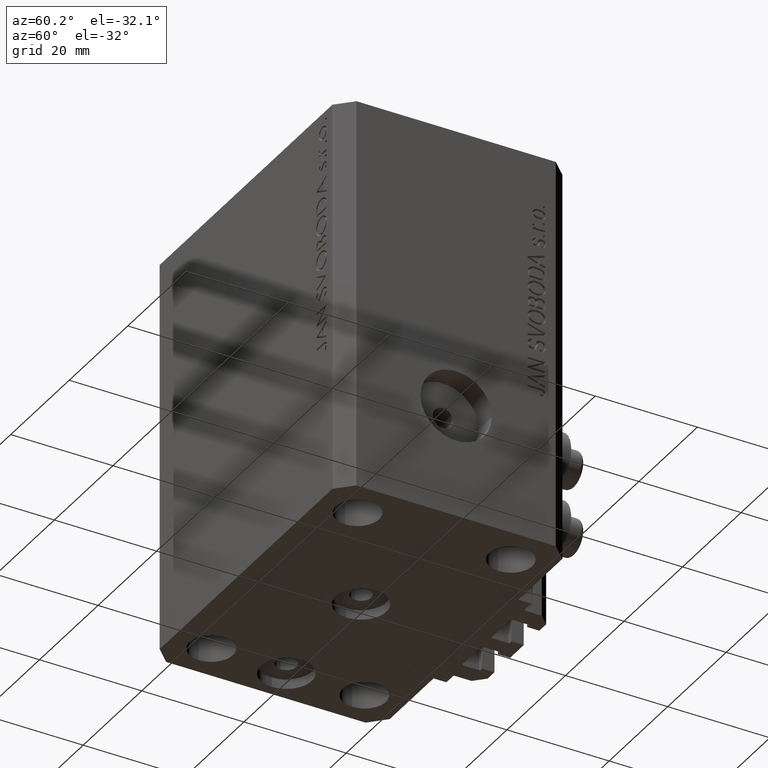
[diagram: clean part render]
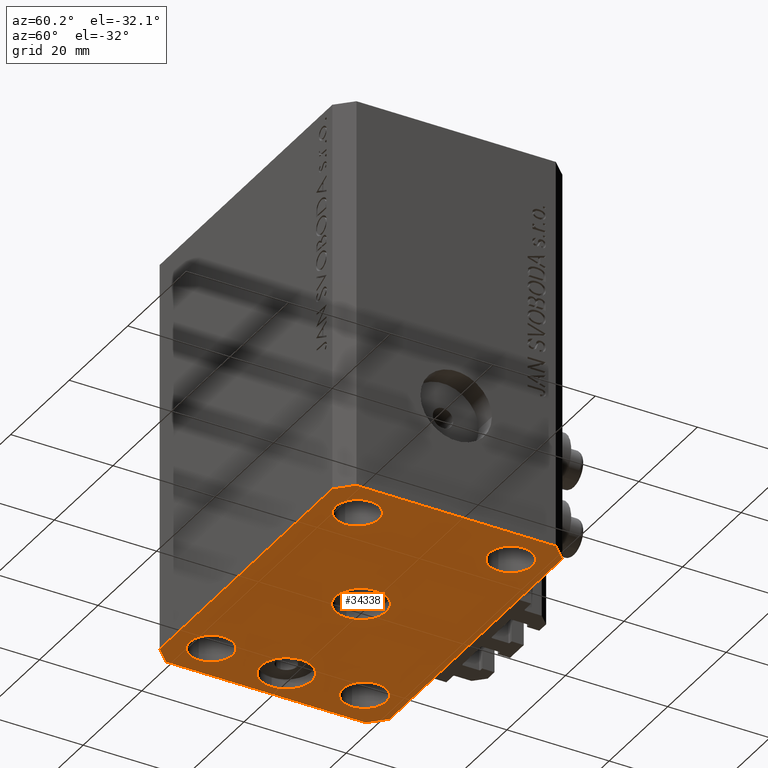
[diagram: same view with one face highlighted and labeled with its STEP entity id]
A machine part, auxiliary view. The second image highlights one B-rep face of the part: STEP entity #34338.
In plain terms, the highlighted planar face has unit normal (0, 0, 1).
Its self-contained STEP definition (entity closure, byte-faithful):
#42 = EDGE_LOOP ( 'NONE', ( #28017, #45669, #17733, #45471, #38577, #26413, #19222, #33007 ) ) ;
#112 = CARTESIAN_POINT ( 'NONE',  ( 29.49999999999650413, -22.49999999999949196, -77.00000000000000000 ) ) ;
#192 = CARTESIAN_POINT ( 'NONE',  ( 29.49999999999707967, 22.49999999999952038, -77.00000000000000000 ) ) ;
#526 = CARTESIAN_POINT ( 'NONE',  ( 29.49999999999707967, 22.49999999999952038, -77.00000000000000000 ) ) ;
#890 = VERTEX_POINT ( 'NONE', #192 ) ;
#1802 = EDGE_CURVE ( 'NONE', #18917, #890, #41282, .T. ) ;
#2027 = CARTESIAN_POINT ( 'NONE',  ( -25.50000000000000000, 0.000000000000000000, -77.00000000000000000 ) ) ;
#2393 = EDGE_CURVE ( 'NONE', #28369, #24701, #24272, .T. ) ;
#2681 = DIRECTION ( 'NONE',  ( 0.000000000000000000, 0.000000000000000000, 1.000000000000000000 ) ) ;
#2917 = FACE_OUTER_BOUND ( 'NONE', #42, .T. ) ;
#2979 = AXIS2_PLACEMENT_3D ( 'NONE', #4866, #23077, #37979 ) ;
#3163 = CIRCLE ( 'NONE', #36931, 4.250000000040370374 ) ;
#3280 = AXIS2_PLACEMENT_3D ( 'NONE', #41331, #4855, #31183 ) ;
#3887 = CARTESIAN_POINT ( 'NONE',  ( 20.75000000004271072, 14.99999999999999289, -77.00000000000000000 ) ) ;
#4546 = VERTEX_POINT ( 'NONE', #8522 ) ;
#4743 = CIRCLE ( 'NONE', #16970, 5.000000000000000000 ) ;
#4781 = VERTEX_POINT ( 'NONE', #3887 ) ;
#4855 = DIRECTION ( 'NONE',  ( -0.000000000000000000, -0.000000000000000000, -1.000000000000000000 ) ) ;
#4866 = CARTESIAN_POINT ( 'NONE',  ( -25.50000000000000000, 0.000000000000000000, -77.00000000000000000 ) ) ;
#5001 = EDGE_CURVE ( 'NONE', #37914, #17655, #17974, .T. ) ;
#5147 = VECTOR ( 'NONE', #21220, 1000.000000000000000 ) ;
#5447 = CARTESIAN_POINT ( 'NONE',  ( -30.49999999999665690, 0.000000000000000000, -77.00000000000000000 ) ) ;
#5607 = ORIENTED_EDGE ( 'NONE', *, *, #41930, .F. ) ;
#6002 = VECTOR ( 'NONE', #6464, 1000.000000000000114 ) ;
#6464 = DIRECTION ( 'NONE',  ( 0.7071067811865474617, -0.7071067811865474617, 0.000000000000000000 ) ) ;
#7131 = CIRCLE ( 'NONE', #44677, 4.249999999976314058 ) ;
#7412 = DIRECTION ( 'NONE',  ( 0.000000000000000000, 0.000000000000000000, -1.000000000000000000 ) ) ;
#7545 = CARTESIAN_POINT ( 'NONE',  ( -32.49999999999650413, -19.49999999999949907, -77.00000000000000000 ) ) ;
#7608 = EDGE_LOOP ( 'NONE', ( #21483, #22783 ) ) ;
#7829 = DIRECTION ( 'NONE',  ( 1.000000000000000000, 0.000000000000000000, 0.000000000000000000 ) ) ;
#8128 = VERTEX_POINT ( 'NONE', #30018 ) ;
#8258 = AXIS2_PLACEMENT_3D ( 'NONE', #11339, #21682, #36333 ) ;
#8388 = CARTESIAN_POINT ( 'NONE',  ( 32.49999999999702993, 19.49999999999945999, -77.00000000000000000 ) ) ;
#8522 = CARTESIAN_POINT ( 'NONE',  ( 29.49999999999650413, -22.49999999999949196, -77.00000000000000000 ) ) ;
#9451 = AXIS2_PLACEMENT_3D ( 'NONE', #29903, #11677, #26313 ) ;
#9556 = ORIENTED_EDGE ( 'NONE', *, *, #34120, .F. ) ;
#9796 = LINE ( 'NONE', #27787, #13570 ) ;
#9815 = VERTEX_POINT ( 'NONE', #5447 ) ;
#9880 = CIRCLE ( 'NONE', #2979, 4.999999999996659561 ) ;
#10286 = CARTESIAN_POINT ( 'NONE',  ( -32.49999999999650413, -19.49999999999949907, -77.00000000000000000 ) ) ;
#10474 = AXIS2_PLACEMENT_3D ( 'NONE', #38688, #2681, #17301 ) ;
#10709 = DIRECTION ( 'NONE',  ( -0.000000000000000000, -0.000000000000000000, -1.000000000000000000 ) ) ;
#11274 = DIRECTION ( 'NONE',  ( -1.000000000000000000, 0.000000000000000000, 0.000000000000000000 ) ) ;
#11339 = CARTESIAN_POINT ( 'NONE',  ( 24.99999999999999289, -15.00000000000000355, -77.00000000000000000 ) ) ;
#11514 = EDGE_LOOP ( 'NONE', ( #43559, #5607 ) ) ;
#11677 = DIRECTION ( 'NONE',  ( -0.000000000000000000, -0.000000000000000000, -1.000000000000000000 ) ) ;
#12297 = EDGE_CURVE ( 'NONE', #19050, #37914, #45488, .T. ) ;
#12428 = CARTESIAN_POINT ( 'NONE',  ( 32.49999999999702993, 19.49999999999945999, -77.00000000000000000 ) ) ;
#12856 = ORIENTED_EDGE ( 'NONE', *, *, #21767, .F. ) ;
#13296 = EDGE_CURVE ( 'NONE', #17655, #4546, #22169, .T. ) ;
#13449 = VERTEX_POINT ( 'NONE', #13974 ) ;
#13523 = EDGE_CURVE ( 'NONE', #13449, #45925, #3163, .T. ) ;
#13570 = VECTOR ( 'NONE', #31619, 1000.000000000000000 ) ;
#13607 = CARTESIAN_POINT ( 'NONE',  ( -29.25000000002137668, 14.99999999999999645, -77.00000000000000000 ) ) ;
#13974 = CARTESIAN_POINT ( 'NONE',  ( -20.74999999995962341, -15.00000000000000355, -77.00000000000000000 ) ) ;
#14024 = VECTOR ( 'NONE', #32669, 1000.000000000000000 ) ;
#14265 = VERTEX_POINT ( 'NONE', #33122 ) ;
#14282 = EDGE_CURVE ( 'NONE', #42781, #46429, #4743, .T. ) ;
#14787 = CARTESIAN_POINT ( 'NONE',  ( 24.99999999999999289, -15.00000000000000355, -77.00000000000000000 ) ) ;
#14886 = CARTESIAN_POINT ( 'NONE',  ( 0.000000000000000000, 0.000000000000000000, -77.00000000000000000 ) ) ;
#15067 = DIRECTION ( 'NONE',  ( 1.000000000000000000, 0.000000000000000000, 0.000000000000000000 ) ) ;
#15112 = ORIENTED_EDGE ( 'NONE', *, *, #14282, .F. ) ;
#15149 = DIRECTION ( 'NONE',  ( -0.000000000000000000, -0.000000000000000000, -1.000000000000000000 ) ) ;
#15323 = VERTEX_POINT ( 'NONE', #28268 ) ;
#15462 = CARTESIAN_POINT ( 'NONE',  ( -5.000000000000000000, 0.000000000000000000, -77.00000000000000000 ) ) ;
#16292 = DIRECTION ( 'NONE',  ( -0.000000000000000000, -0.000000000000000000, -1.000000000000000000 ) ) ;
#16515 = CARTESIAN_POINT ( 'NONE',  ( -25.00000000000000000, 14.99999999999999645, -77.00000000000000000 ) ) ;
#16970 = AXIS2_PLACEMENT_3D ( 'NONE', #14886, #44182, #11274 ) ;
#16997 = DIRECTION ( 'NONE',  ( 1.000000000000000000, 0.000000000000000000, 0.000000000000000000 ) ) ;
#17301 = DIRECTION ( 'NONE',  ( 1.000000000000000000, 0.000000000000000000, -0.000000000000000000 ) ) ;
#17655 = VERTEX_POINT ( 'NONE', #46711 ) ;
#17733 = ORIENTED_EDGE ( 'NONE', *, *, #17980, .F. ) ;
#17974 = LINE ( 'NONE', #10286, #6002 ) ;
#17980 = EDGE_CURVE ( 'NONE', #44664, #18917, #9796, .T. ) ;
#18090 = EDGE_LOOP ( 'NONE', ( #36452, #9556 ) ) ;
#18503 = VECTOR ( 'NONE', #18817, 1000.000000000000000 ) ;
#18817 = DIRECTION ( 'NONE',  ( 1.000000000000000000, 1.176083712526788232E-16, 0.000000000000000000 ) ) ;
#18917 = VERTEX_POINT ( 'NONE', #12428 ) ;
#19050 = VERTEX_POINT ( 'NONE', #42412 ) ;
#19137 = EDGE_CURVE ( 'NONE', #35053, #14265, #7131, .T. ) ;
#19222 = ORIENTED_EDGE ( 'NONE', *, *, #12297, .F. ) ;
#19694 = AXIS2_PLACEMENT_3D ( 'NONE', #35722, #35489, #16997 ) ;
#19746 = CARTESIAN_POINT ( 'NONE',  ( 29.24999999995729283, 14.99999999999999289, -77.00000000000000000 ) ) ;
#19778 = EDGE_CURVE ( 'NONE', #890, #15323, #21643, .T. ) ;
#19787 = DIRECTION ( 'NONE',  ( -1.000000000000000000, 0.000000000000000000, 0.000000000000000000 ) ) ;
#20255 = DIRECTION ( 'NONE',  ( 0.000000000000000000, 0.000000000000000000, -1.000000000000000000 ) ) ;
#20682 = ORIENTED_EDGE ( 'NONE', *, *, #2393, .F. ) ;
#20775 = VECTOR ( 'NONE', #31283, 1000.000000000000000 ) ;
#21211 = CARTESIAN_POINT ( 'NONE',  ( 29.24999999997631051, -15.00000000000000355, -77.00000000000000000 ) ) ;
#21220 = DIRECTION ( 'NONE',  ( 0.7071067811865483499, 0.7071067811865466846, 0.000000000000000000 ) ) ;
#21483 = ORIENTED_EDGE ( 'NONE', *, *, #13523, .F. ) ;
#21643 = LINE ( 'NONE', #526, #14024 ) ;
#21682 = DIRECTION ( 'NONE',  ( -0.000000000000000000, -0.000000000000000000, -1.000000000000000000 ) ) ;
#21729 = AXIS2_PLACEMENT_3D ( 'NONE', #16515, #16292, #37921 ) ;
#21767 = EDGE_CURVE ( 'NONE', #4781, #32617, #46961, .T. ) ;
#22169 = LINE ( 'NONE', #22406, #18503 ) ;
#22406 = CARTESIAN_POINT ( 'NONE',  ( -29.49999999999650413, -22.49999999999949907, -77.00000000000000000 ) ) ;
#22783 = ORIENTED_EDGE ( 'NONE', *, *, #34828, .F. ) ;
#22791 = ORIENTED_EDGE ( 'NONE', *, *, #25284, .F. ) ;
#22853 = FACE_BOUND ( 'NONE', #11514, .T. ) ;
#23077 = DIRECTION ( 'NONE',  ( 0.000000000000000000, 0.000000000000000000, -1.000000000000000000 ) ) ;
#23796 = FACE_BOUND ( 'NONE', #41529, .T. ) ;
#24027 = PLANE ( 'NONE',  #10474 ) ;
#24113 = ORIENTED_EDGE ( 'NONE', *, *, #24965, .F. ) ;
#24272 = CIRCLE ( 'NONE', #19694, 4.250000000021375790 ) ;
#24331 = CARTESIAN_POINT ( 'NONE',  ( -32.49999999999650413, 19.49999999999949907, -77.00000000000000000 ) ) ;
#24701 = VERTEX_POINT ( 'NONE', #28720 ) ;
#24834 = AXIS2_PLACEMENT_3D ( 'NONE', #46535, #7412, #47022 ) ;
#24965 = EDGE_CURVE ( 'NONE', #24701, #28369, #43190, .T. ) ;
#25067 = VECTOR ( 'NONE', #37922, 1000.000000000000000 ) ;
#25102 = CIRCLE ( 'NONE', #8258, 4.249999999976314058 ) ;
#25284 = EDGE_CURVE ( 'NONE', #32617, #4781, #30123, .T. ) ;
#25633 = CARTESIAN_POINT ( 'NONE',  ( -24.99999999999999289, -15.00000000000000355, -77.00000000000000000 ) ) ;
#26313 = DIRECTION ( 'NONE',  ( 1.000000000000000000, 0.000000000000000000, 0.000000000000000000 ) ) ;
#26413 = ORIENTED_EDGE ( 'NONE', *, *, #5001, .F. ) ;
#26429 = LINE ( 'NONE', #33639, #27648 ) ;
#26964 = EDGE_CURVE ( 'NONE', #46429, #42781, #42488, .T. ) ;
#27648 = VECTOR ( 'NONE', #29549, 1000.000000000000114 ) ;
#27787 = CARTESIAN_POINT ( 'NONE',  ( 32.49999999999651124, -19.49999999999949196, -77.00000000000000000 ) ) ;
#28017 = ORIENTED_EDGE ( 'NONE', *, *, #19778, .F. ) ;
#28268 = CARTESIAN_POINT ( 'NONE',  ( -29.49999999999650413, 22.49999999999949907, -77.00000000000000000 ) ) ;
#28369 = VERTEX_POINT ( 'NONE', #13607 ) ;
#28720 = CARTESIAN_POINT ( 'NONE',  ( -20.74999999997862687, 14.99999999999999645, -77.00000000000000000 ) ) ;
#29549 = DIRECTION ( 'NONE',  ( -0.7071067811865474617, -0.7071067811865474617, 0.000000000000000000 ) ) ;
#29903 = CARTESIAN_POINT ( 'NONE',  ( 25.00000000000000000, 14.99999999999999289, -77.00000000000000000 ) ) ;
#30018 = CARTESIAN_POINT ( 'NONE',  ( -20.50000000000333955, 6.123233995732674066E-16, -77.00000000000000000 ) ) ;
#30123 = CIRCLE ( 'NONE', #9451, 4.249999999957291053 ) ;
#30235 = DIRECTION ( 'NONE',  ( 1.000000000000000000, 0.000000000000000000, 0.000000000000000000 ) ) ;
#30747 = FACE_BOUND ( 'NONE', #18090, .T. ) ;
#31183 = DIRECTION ( 'NONE',  ( 1.000000000000000000, 0.000000000000000000, 0.000000000000000000 ) ) ;
#31283 = DIRECTION ( 'NONE',  ( 0.000000000000000000, -1.000000000000000000, 0.000000000000000000 ) ) ;
#31619 = DIRECTION ( 'NONE',  ( 1.334402673828349134E-14, 1.000000000000000000, 0.000000000000000000 ) ) ;
#32469 = EDGE_LOOP ( 'NONE', ( #24113, #20682 ) ) ;
#32617 = VERTEX_POINT ( 'NONE', #19746 ) ;
#32669 = DIRECTION ( 'NONE',  ( -1.000000000000000000, -3.528251137580330676E-16, 0.000000000000000000 ) ) ;
#33007 = ORIENTED_EDGE ( 'NONE', *, *, #46817, .F. ) ;
#33122 = CARTESIAN_POINT ( 'NONE',  ( 20.75000000002367884, -15.00000000000000355, -77.00000000000000000 ) ) ;
#33639 = CARTESIAN_POINT ( 'NONE',  ( -29.49999999999650413, 22.49999999999949907, -77.00000000000000000 ) ) ;
#33870 = CARTESIAN_POINT ( 'NONE',  ( -24.99999999999999289, -15.00000000000000355, -77.00000000000000000 ) ) ;
#34120 = EDGE_CURVE ( 'NONE', #14265, #35053, #25102, .T. ) ;
#34338 = ADVANCED_FACE ( 'NONE', ( #23796, #22853, #45184, #30747, #45425, #38931, #2917 ), #24027, .F. ) ;
#34828 = EDGE_CURVE ( 'NONE', #45925, #13449, #35762, .T. ) ;
#35053 = VERTEX_POINT ( 'NONE', #21211 ) ;
#35489 = DIRECTION ( 'NONE',  ( -0.000000000000000000, -0.000000000000000000, -1.000000000000000000 ) ) ;
#35516 = CARTESIAN_POINT ( 'NONE',  ( 32.49999999999651124, -19.49999999999949196, -77.00000000000000000 ) ) ;
#35722 = CARTESIAN_POINT ( 'NONE',  ( -25.00000000000000000, 14.99999999999999645, -77.00000000000000000 ) ) ;
#35762 = CIRCLE ( 'NONE', #45720, 4.250000000040370374 ) ;
#36155 = EDGE_CURVE ( 'NONE', #4546, #44664, #47395, .T. ) ;
#36193 = CARTESIAN_POINT ( 'NONE',  ( -29.25000000004036593, -15.00000000000000355, -77.00000000000000000 ) ) ;
#36333 = DIRECTION ( 'NONE',  ( 1.000000000000000000, 0.000000000000000000, 0.000000000000000000 ) ) ;
#36452 = ORIENTED_EDGE ( 'NONE', *, *, #19137, .F. ) ;
#36931 = AXIS2_PLACEMENT_3D ( 'NONE', #33870, #15149, #30235 ) ;
#37122 = EDGE_LOOP ( 'NONE', ( #22791, #12856 ) ) ;
#37137 = ORIENTED_EDGE ( 'NONE', *, *, #26964, .F. ) ;
#37914 = VERTEX_POINT ( 'NONE', #7545 ) ;
#37921 = DIRECTION ( 'NONE',  ( 1.000000000000000000, 0.000000000000000000, 0.000000000000000000 ) ) ;
#37922 = DIRECTION ( 'NONE',  ( -0.7071067811865344721, 0.7071067811865606734, 0.000000000000000000 ) ) ;
#37979 = DIRECTION ( 'NONE',  ( -1.000000000000000000, 0.000000000000000000, 0.000000000000000000 ) ) ;
#38577 = ORIENTED_EDGE ( 'NONE', *, *, #13296, .F. ) ;
#38688 = CARTESIAN_POINT ( 'NONE',  ( 0.000000000000000000, 0.000000000000000000, -77.00000000000000000 ) ) ;
#38931 = FACE_BOUND ( 'NONE', #32469, .T. ) ;
#39059 = CIRCLE ( 'NONE', #40613, 4.999999999996659561 ) ;
#40431 = EDGE_CURVE ( 'NONE', #9815, #8128, #9880, .T. ) ;
#40613 = AXIS2_PLACEMENT_3D ( 'NONE', #2027, #20255, #19787 ) ;
#41282 = LINE ( 'NONE', #8388, #25067 ) ;
#41331 = CARTESIAN_POINT ( 'NONE',  ( 25.00000000000000000, 14.99999999999999289, -77.00000000000000000 ) ) ;
#41529 = EDGE_LOOP ( 'NONE', ( #37137, #15112 ) ) ;
#41930 = EDGE_CURVE ( 'NONE', #8128, #9815, #39059, .T. ) ;
#42412 = CARTESIAN_POINT ( 'NONE',  ( -32.49999999999650413, 19.49999999999949907, -77.00000000000000000 ) ) ;
#42488 = CIRCLE ( 'NONE', #24834, 5.000000000000000000 ) ;
#42781 = VERTEX_POINT ( 'NONE', #45795 ) ;
#43190 = CIRCLE ( 'NONE', #21729, 4.250000000021375790 ) ;
#43559 = ORIENTED_EDGE ( 'NONE', *, *, #40431, .F. ) ;
#43898 = DIRECTION ( 'NONE',  ( -0.000000000000000000, -0.000000000000000000, -1.000000000000000000 ) ) ;
#44182 = DIRECTION ( 'NONE',  ( 0.000000000000000000, 0.000000000000000000, -1.000000000000000000 ) ) ;
#44664 = VERTEX_POINT ( 'NONE', #35516 ) ;
#44677 = AXIS2_PLACEMENT_3D ( 'NONE', #14787, #10709, #7829 ) ;
#45184 = FACE_BOUND ( 'NONE', #7608, .T. ) ;
#45425 = FACE_BOUND ( 'NONE', #37122, .T. ) ;
#45471 = ORIENTED_EDGE ( 'NONE', *, *, #36155, .F. ) ;
#45488 = LINE ( 'NONE', #24331, #20775 ) ;
#45669 = ORIENTED_EDGE ( 'NONE', *, *, #1802, .F. ) ;
#45720 = AXIS2_PLACEMENT_3D ( 'NONE', #25633, #43898, #15067 ) ;
#45795 = CARTESIAN_POINT ( 'NONE',  ( 5.000000000000000000, 6.123233995736765296E-16, -77.00000000000000000 ) ) ;
#45925 = VERTEX_POINT ( 'NONE', #36193 ) ;
#46429 = VERTEX_POINT ( 'NONE', #15462 ) ;
#46535 = CARTESIAN_POINT ( 'NONE',  ( 0.000000000000000000, 0.000000000000000000, -77.00000000000000000 ) ) ;
#46711 = CARTESIAN_POINT ( 'NONE',  ( -29.49999999999650413, -22.49999999999949907, -77.00000000000000000 ) ) ;
#46817 = EDGE_CURVE ( 'NONE', #15323, #19050, #26429, .T. ) ;
#46961 = CIRCLE ( 'NONE', #3280, 4.249999999957291053 ) ;
#47022 = DIRECTION ( 'NONE',  ( -1.000000000000000000, 0.000000000000000000, 0.000000000000000000 ) ) ;
#47395 = LINE ( 'NONE', #112, #5147 ) ;